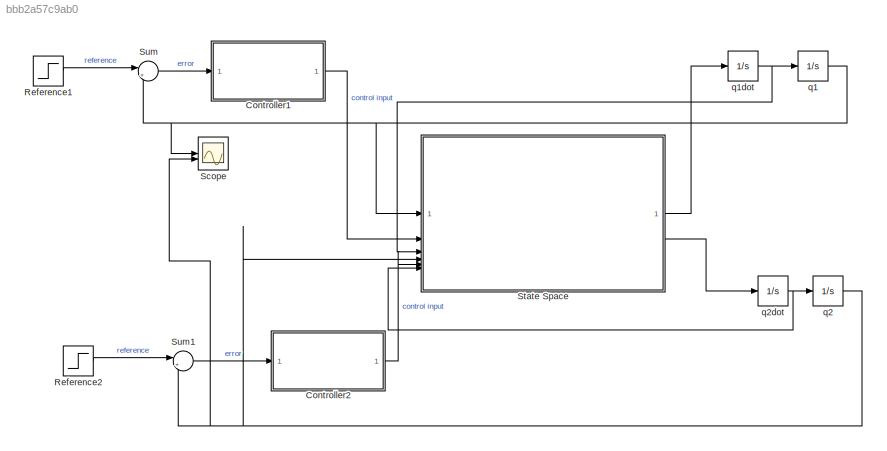
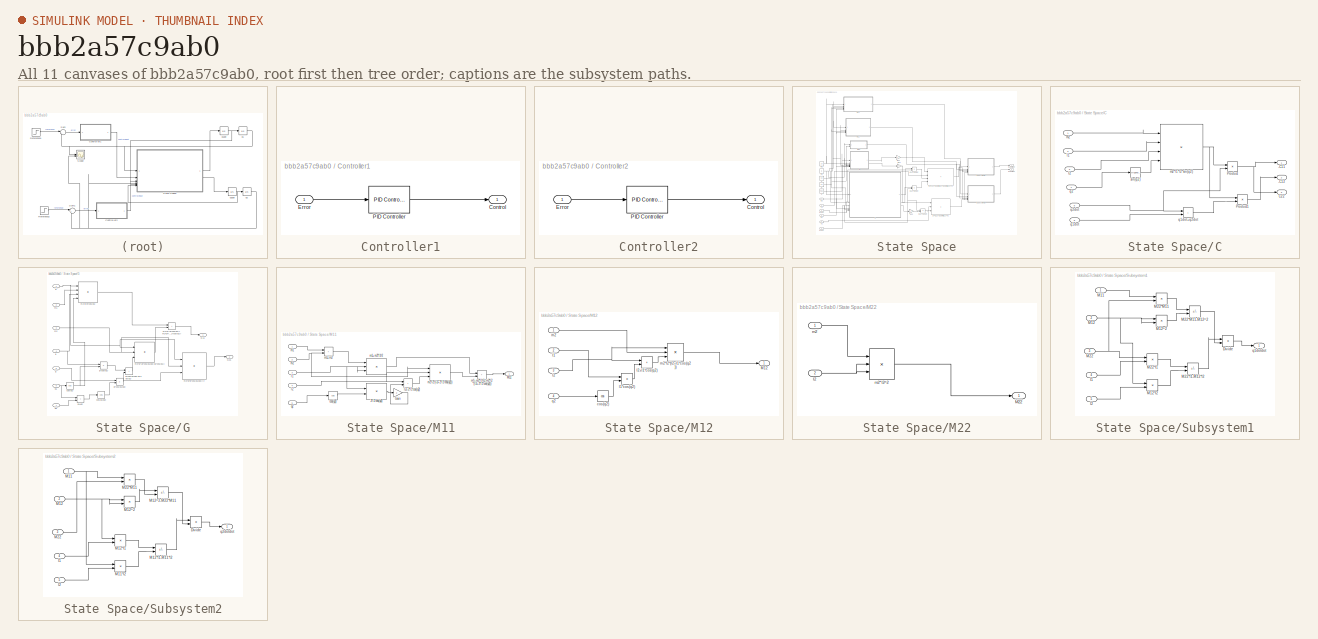
[diagram: thumbnail index - all 11 canvases of the model, root first then tree order]
MODEL slx_bbb2a57c9ab0
KIND model
CONFIG AbsTol = auto
CONFIG EnableMultiTasking = on
CONFIG FixedStep = auto
CONFIG MaxStep = 0.01
CONFIG MinStep = auto
CONFIG RelTol = 1e-10
CONFIG SampleTimeConstraint = Unconstrained
CONFIG SolverName = ode45
CONFIG StartTime = 0.0
CONFIG StopTime = 10
BLOCK [SubSystem] Controller1
BLOCK [Outport] Controller1/Control
BLOCK [Inport] Controller1/Error
BLOCK [Reference] Controller1/PID Controller  REF=slpidlib/PID Controller
  SourceBlock = slpidlib/PID Controller
  SourceType = PID 1dof
BLOCK [SubSystem] Controller2
BLOCK [Outport] Controller2/Control
BLOCK [Inport] Controller2/Error
BLOCK [Reference] Controller2/PID Controller  REF=slpidlib/PID Controller
  SourceBlock = slpidlib/PID Controller
  SourceType = PID 1dof
BLOCK [Step] Reference1
  After = 0
  SampleTime = 0
BLOCK [Step] Reference2
  After = 0
  SampleTime = 0
BLOCK [Scope] Scope
  Floating = off
  NumInputPorts = 2
  ScopeSpecificationString = Simulink.scopes.TimeScopeBlockCfg('CurrentConfiguration', extmgr.ConfigurationSet(extmgr.Configuration('Core','General UI',true,'DisplayFullSourceName',true),extmgr.Configuration('Core','Source UI',true),extmgr.Configuration('Sources','WiredSimulink',true),extmgr.Configuration('Visuals','Time Domain',true,'SerializedDisplays',{struct('MinYLimReal','-0.62843','MaxYLimReal','0.08277','YLabelReal',''...<+1543ch>
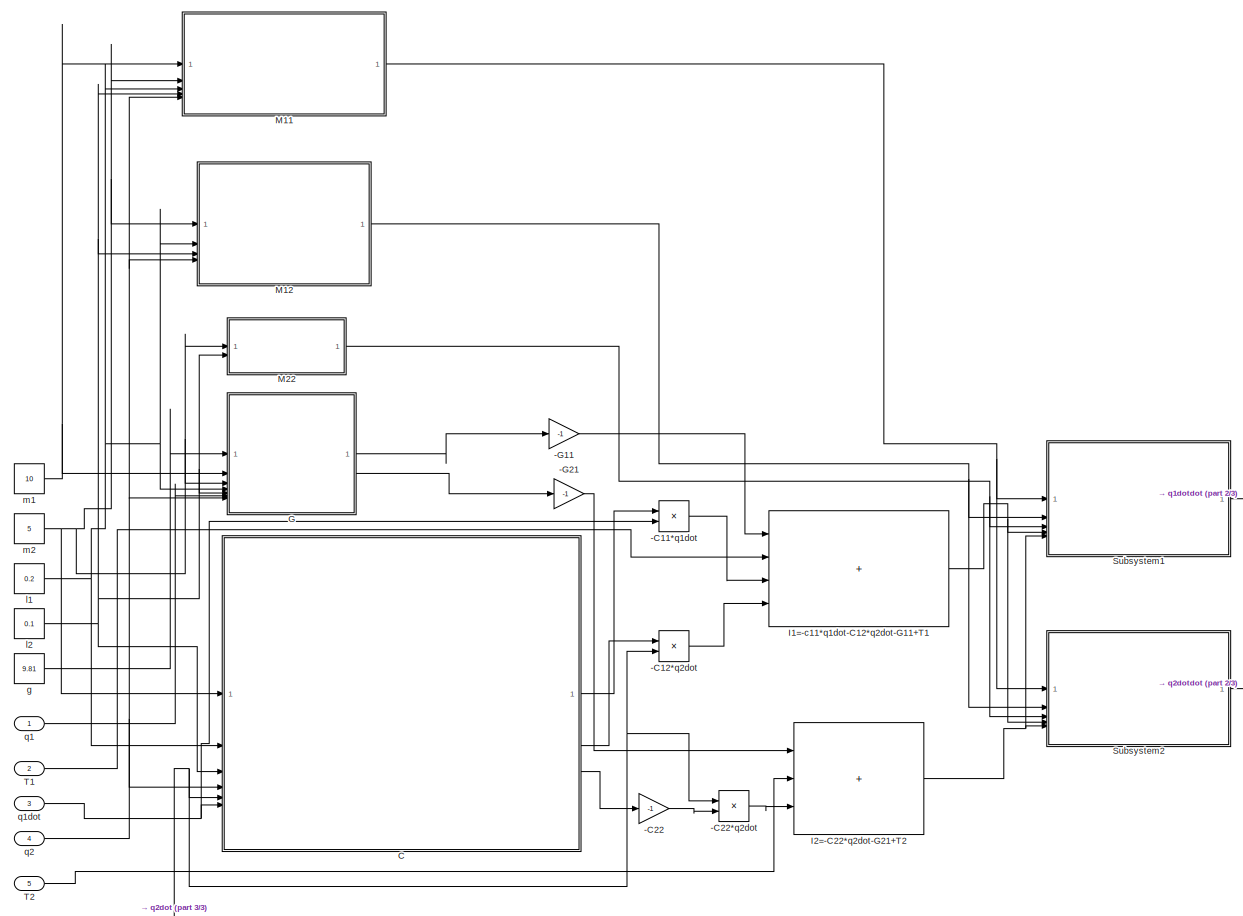
[diagram: State Space - part 1/3, most of the canvas]
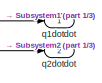
[diagram: State Space - part 2/3, middle right region]
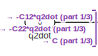
[diagram: State Space - part 3/3, bottom left region]
BLOCK [SubSystem] State Space
BLOCK [Product] State Space/-C11*q1dot
BLOCK [Product] State Space/-C12*q2dot
BLOCK [Gain] State Space/-C22
  Gain = -1
BLOCK [Product] State Space/-C22*q2dot
BLOCK [Gain] State Space/-G11
  Gain = -1
BLOCK [Gain] State Space/-G21
  Gain = -1
BLOCK [SubSystem] State Space/C
BLOCK [Outport] State Space/C/-C11
BLOCK [Outport] State Space/C/-C12
  Port = 2
BLOCK [Outport] State Space/C/C22
  Port = 3
BLOCK [Inport] State Space/C/I2
  Port = 3
BLOCK [Product] State Space/C/Product
BLOCK [Product] State Space/C/Product1
BLOCK [Inport] State Space/C/l1
  Port = 2
BLOCK [Inport] State Space/C/m2
BLOCK [Product] State Space/C/m2*l1*l2*sin(q2)
  Inputs = 4
BLOCK [Inport] State Space/C/q1dot
  Port = 6
BLOCK [Sum] State Space/C/q1dot+q2dot
  IconShape = rectangular
BLOCK [Inport] State Space/C/q2
  Port = 4
BLOCK [Inport] State Space/C/q2dot
  Port = 5
BLOCK [Trigonometry] State Space/C/sin(q2)
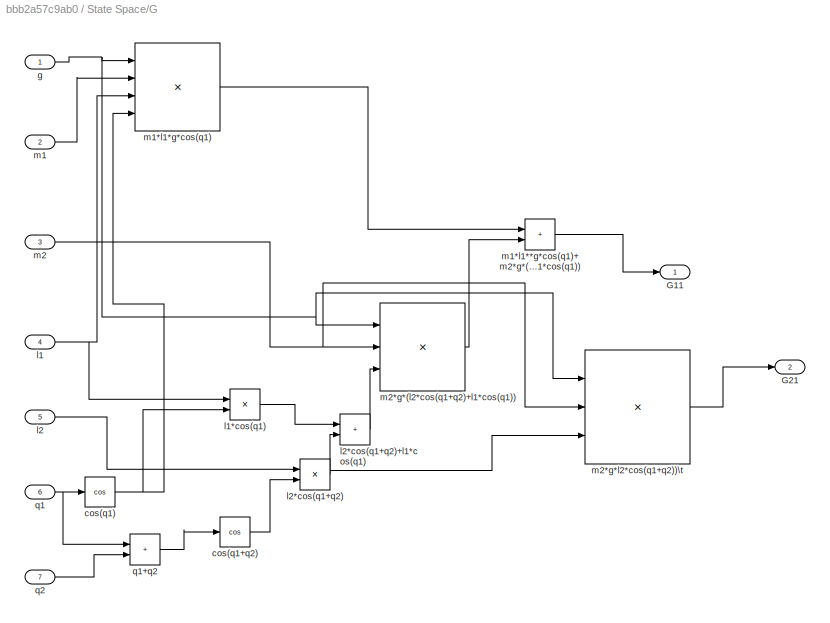
BLOCK [SubSystem] State Space/G
BLOCK [Outport] State Space/G/G11
BLOCK [Outport] State Space/G/G21
  Port = 2
BLOCK [Trigonometry] State Space/G/cos(q1)
  Operator = cos
BLOCK [Trigonometry] State Space/G/cos(q1+q2)
  Operator = cos
BLOCK [Inport] State Space/G/g
BLOCK [Inport] State Space/G/l1
  Port = 4
BLOCK [Product] State Space/G/l1*cos(q1)
BLOCK [Inport] State Space/G/l2
  Port = 5
BLOCK [Product] State Space/G/l2*cos(q1+q2)
BLOCK [Sum] State Space/G/l2*cos(q1+q2)+l1*cos(q1)
  IconShape = rectangular
BLOCK [Inport] State Space/G/m1
  Port = 2
BLOCK [Sum] State Space/G/m1*l1**g*cos(q1)+m2*g*(l2cos(q1+q2)+l1*cos(q1))
  IconShape = rectangular
BLOCK [Product] State Space/G/m1*l1*g*cos(q1)
  Inputs = 4
BLOCK [Inport] State Space/G/m2
  Port = 3
BLOCK [Product] State Space/G/m2*g*(l2*cos(q1+q2)+l1*cos(q1))
  Inputs = 3
BLOCK [Product] State Space/G/m2*g*l2*cos(q1+q2))\t
  Inputs = 3
BLOCK [Inport] State Space/G/q1
  Port = 6
BLOCK [Sum] State Space/G/q1+q2
  IconShape = rectangular
BLOCK [Inport] State Space/G/q2
  Port = 7
BLOCK [Sum] State Space/I1=-c11*q1dot-C12*q2dot-G11+T1
  IconShape = rectangular
  Inputs = ++++
BLOCK [Sum] State Space/I2=-C22*q2dot-G21+T2
  IconShape = rectangular
  Inputs = +++
BLOCK [SubSystem] State Space/M11
BLOCK [Product] State Space/M11/2*l1*cos(q2)
BLOCK [Gain] State Space/M11/Gain
  Gain = 2
BLOCK [Outport] State Space/M11/M11
BLOCK [Trigonometry] State Space/M11/cos(q2)
  Operator = cos
BLOCK [Inport] State Space/M11/l1
  Port = 3
BLOCK [Inport] State Space/M11/l2
  Port = 4
BLOCK [Sum] State Space/M11/l2+2*l1*cos(q2)
  IconShape = rectangular
BLOCK [Inport] State Space/M11/m1
BLOCK [Sum] State Space/M11/m1+m2
  IconShape = rectangular
BLOCK [Product] State Space/M11/m1+m2*l1^2
  Inputs = 3
BLOCK [Sum] State Space/M11/m1+m2*l1^2+m2*l2*(l2+2*l1*cos(q2))
  IconShape = rectangular
BLOCK [Inport] State Space/M11/m2
  Port = 2
BLOCK [Product] State Space/M11/m2*l2*(l2+2*l1*cos(q2))
  Inputs = 3
BLOCK [Inport] State Space/M11/q2
  Port = 5
BLOCK [SubSystem] State Space/M12
BLOCK [Outport] State Space/M12/M12
BLOCK [Trigonometry] State Space/M12/cos(q2)
  Operator = cos
BLOCK [Inport] State Space/M12/l1
  Port = 2
BLOCK [Product] State Space/M12/l1*cos(q2)
BLOCK [Inport] State Space/M12/l2
  Port = 3
BLOCK [Sum] State Space/M12/l2+l1*cos(q2)
  IconShape = rectangular
BLOCK [Inport] State Space/M12/m2
BLOCK [Product] State Space/M12/m2*l2*(l2+l1*cos(q2))
  Inputs = 3
BLOCK [Inport] State Space/M12/q2
  Port = 4
BLOCK [SubSystem] State Space/M22
BLOCK [Outport] State Space/M22/M22
BLOCK [Inport] State Space/M22/l2
  Port = 2
BLOCK [Inport] State Space/M22/m2
BLOCK [Product] State Space/M22/m2*l2^2
  Inputs = 3
BLOCK [SubSystem] State Space/Subsystem1
BLOCK [Product] State Space/Subsystem1/Divide
  Inputs = */
BLOCK [Inport] State Space/Subsystem1/I1
  Port = 4
BLOCK [Inport] State Space/Subsystem1/I2
  Port = 5
BLOCK [Inport] State Space/Subsystem1/M11
BLOCK [Inport] State Space/Subsystem1/M12
  Port = 2
BLOCK [Product] State Space/Subsystem1/M12*I2
BLOCK [Product] State Space/Subsystem1/M12^2
BLOCK [Inport] State Space/Subsystem1/M22
  Port = 3
BLOCK [Product] State Space/Subsystem1/M22*I1
BLOCK [Sum] State Space/Subsystem1/M22*I1-M12*I2
  IconShape = rectangular
  Inputs = +-
BLOCK [Product] State Space/Subsystem1/M22*M11
BLOCK [Sum] State Space/Subsystem1/M22*M11-M12^2
  IconShape = rectangular
  Inputs = +-
BLOCK [Outport] State Space/Subsystem1/q1dotdot 
BLOCK [SubSystem] State Space/Subsystem2
BLOCK [Product] State Space/Subsystem2/Divide
  Inputs = */
BLOCK [Inport] State Space/Subsystem2/I1
  Port = 4
BLOCK [Inport] State Space/Subsystem2/I2
  Port = 5
BLOCK [Inport] State Space/Subsystem2/M11
BLOCK [Product] State Space/Subsystem2/M11*I2
BLOCK [Inport] State Space/Subsystem2/M12
  Port = 2
BLOCK [Product] State Space/Subsystem2/M12*I1
BLOCK [Sum] State Space/Subsystem2/M12*I1-M11*I2
  IconShape = rectangular
  Inputs = +-
BLOCK [Product] State Space/Subsystem2/M12^2
BLOCK [Sum] State Space/Subsystem2/M12^2-M22*M11
  IconShape = rectangular
  Inputs = +-
BLOCK [Inport] State Space/Subsystem2/M22
  Port = 3
BLOCK [Product] State Space/Subsystem2/M22*M11
BLOCK [Outport] State Space/Subsystem2/q2dotdot 
BLOCK [Inport] State Space/T1
  Port = 2
BLOCK [Inport] State Space/T2
  Port = 5
BLOCK [Constant] State Space/g
  Value = 9.81
BLOCK [Constant] State Space/l1
  Value = 0.2
BLOCK [Constant] State Space/l2
  Value = 0.1
BLOCK [Constant] State Space/m1
  Value = 10
BLOCK [Constant] State Space/m2
  Value = 5
BLOCK [Inport] State Space/q1
BLOCK [Inport] State Space/q1dot
  Port = 3
BLOCK [Outport] State Space/q1dotdot
BLOCK [Inport] State Space/q2
  Port = 4
BLOCK [Inport] State Space/q2dot
  Port = 6
BLOCK [Outport] State Space/q2dotdot
  Port = 2
BLOCK [Sum] Sum
  Inputs = |+-
BLOCK [Sum] Sum1
  Inputs = |+-
BLOCK [Integrator] q1
  InitialCondition = 0.1
BLOCK [Integrator] q1dot
BLOCK [Integrator] q2
  InitialCondition = 0.1
BLOCK [Integrator] q2dot
LINE Controller1/Error:1 -> Controller1/PID Controller:1
LINE Controller1/PID Controller:1 -> Controller1/Control:1
LINE Controller1:1 -> State Space:2
LINE Controller2/Error:1 -> Controller2/PID Controller:1
LINE Controller2/PID Controller:1 -> Controller2/Control:1
LINE Controller2:1 -> State Space:5
LINE Reference1:1 -> Sum:1
LINE Reference2:1 -> Sum1:1
LINE State Space/-C11*q1dot:1 -> State Space/I1=-c11*q1dot-C12*q2dot-G11+T1:3
LINE State Space/-C12*q2dot:1 -> State Space/I1=-c11*q1dot-C12*q2dot-G11+T1:4
LINE State Space/-C22*q2dot:1 -> State Space/I2=-C22*q2dot-G21+T2:3
LINE State Space/-C22:1 -> State Space/-C22*q2dot:2
LINE State Space/-G11:1 -> State Space/I1=-c11*q1dot-C12*q2dot-G11+T1:1
LINE State Space/-G21:1 -> State Space/I2=-C22*q2dot-G21+T2:1
LINE State Space/C/I2:1 -> State Space/C/m2*l1*l2*sin(q2):3
LINE State Space/C/Product1:1 -> State Space/C/-C12:1
NET State Space/C/Product:1 -> State Space/C/-C11:1, State Space/C/C22:1
LINE State Space/C/l1:1 -> State Space/C/m2*l1*l2*sin(q2):2
NET State Space/C/m2*l1*l2*sin(q2):1 -> State Space/C/Product1:1, State Space/C/Product:1
LINE State Space/C/m2:1 -> State Space/C/m2*l1*l2*sin(q2):1
LINE State Space/C/q1dot+q2dot:1 -> State Space/C/Product1:2
LINE State Space/C/q1dot:1 -> State Space/C/q1dot+q2dot:2
LINE State Space/C/q2:1 -> State Space/C/sin(q2):1
NET State Space/C/q2dot:1 -> State Space/C/Product:2, State Space/C/q1dot+q2dot:1
LINE State Space/C/sin(q2):1 -> State Space/C/m2*l1*l2*sin(q2):4
LINE State Space/C:1 -> State Space/-C11*q1dot:1
LINE State Space/C:2 -> State Space/-C12*q2dot:1
LINE State Space/C:3 -> State Space/-C22:1
NET State Space/G/cos(q1):1 -> State Space/G/l1*cos(q1):2, State Space/G/m1*l1*g*cos(q1):4
LINE State Space/G/cos(q1+q2):1 -> State Space/G/l2*cos(q1+q2):2
NET State Space/G/g:1 -> State Space/G/m1*l1*g*cos(q1):1, State Space/G/m2*g*(l2*cos(q1+q2)+l1*cos(q1)):1, State Space/G/m2*g*l2*cos(q1+q2))\t:1
LINE State Space/G/l1*cos(q1):1 -> State Space/G/l2*cos(q1+q2)+l1*cos(q1):1
NET State Space/G/l1:1 -> State Space/G/l1*cos(q1):1, State Space/G/m1*l1*g*cos(q1):3
LINE State Space/G/l2*cos(q1+q2)+l1*cos(q1):1 -> State Space/G/m2*g*(l2*cos(q1+q2)+l1*cos(q1)):3
NET State Space/G/l2*cos(q1+q2):1 -> State Space/G/l2*cos(q1+q2)+l1*cos(q1):2, State Space/G/m2*g*l2*cos(q1+q2))\t:3
LINE State Space/G/l2:1 -> State Space/G/l2*cos(q1+q2):1
LINE State Space/G/m1*l1**g*cos(q1)+m2*g*(l2cos(q1+q2)+l1*cos(q1)):1 -> State Space/G/G11:1
LINE State Space/G/m1*l1*g*cos(q1):1 -> State Space/G/m1*l1**g*cos(q1)+m2*g*(l2cos(q1+q2)+l1*cos(q1)):1
LINE State Space/G/m1:1 -> State Space/G/m1*l1*g*cos(q1):2
LINE State Space/G/m2*g*(l2*cos(q1+q2)+l1*cos(q1)):1 -> State Space/G/m1*l1**g*cos(q1)+m2*g*(l2cos(q1+q2)+l1*cos(q1)):2
LINE State Space/G/m2*g*l2*cos(q1+q2))\t:1 -> State Space/G/G21:1
NET State Space/G/m2:1 -> State Space/G/m2*g*(l2*cos(q1+q2)+l1*cos(q1)):2, State Space/G/m2*g*l2*cos(q1+q2))\t:2
LINE State Space/G/q1+q2:1 -> State Space/G/cos(q1+q2):1
NET State Space/G/q1:1 -> State Space/G/cos(q1):1, State Space/G/q1+q2:1
LINE State Space/G/q2:1 -> State Space/G/q1+q2:2
LINE State Space/G:1 -> State Space/-G11:1
LINE State Space/G:2 -> State Space/-G21:1
NET State Space/I1=-c11*q1dot-C12*q2dot-G11+T1:1 -> State Space/Subsystem1:4, State Space/Subsystem2:4
NET State Space/I2=-C22*q2dot-G21+T2:1 -> State Space/Subsystem1:5, State Space/Subsystem2:5
LINE State Space/M11/2*l1*cos(q2):1 -> State Space/M11/Gain:1
LINE State Space/M11/Gain:1 -> State Space/M11/l2+2*l1*cos(q2):2
LINE State Space/M11/cos(q2):1 -> State Space/M11/2*l1*cos(q2):2
NET State Space/M11/l1:1 -> State Space/M11/2*l1*cos(q2):1, State Space/M11/m1+m2*l1^2:2, State Space/M11/m1+m2*l1^2:3
LINE State Space/M11/l2+2*l1*cos(q2):1 -> State Space/M11/m2*l2*(l2+2*l1*cos(q2)):3
NET State Space/M11/l2:1 -> State Space/M11/l2+2*l1*cos(q2):1, State Space/M11/m2*l2*(l2+2*l1*cos(q2)):2
LINE State Space/M11/m1+m2*l1^2+m2*l2*(l2+2*l1*cos(q2)):1 -> State Space/M11/M11:1
LINE State Space/M11/m1+m2*l1^2:1 -> State Space/M11/m1+m2*l1^2+m2*l2*(l2+2*l1*cos(q2)):1
LINE State Space/M11/m1+m2:1 -> State Space/M11/m1+m2*l1^2:1
LINE State Space/M11/m1:1 -> State Space/M11/m1+m2:1
LINE State Space/M11/m2*l2*(l2+2*l1*cos(q2)):1 -> State Space/M11/m1+m2*l1^2+m2*l2*(l2+2*l1*cos(q2)):2
NET State Space/M11/m2:1 -> State Space/M11/m1+m2:2, State Space/M11/m2*l2*(l2+2*l1*cos(q2)):1
LINE State Space/M11/q2:1 -> State Space/M11/cos(q2):1
NET State Space/M11:1 -> State Space/Subsystem1:1, State Space/Subsystem2:1
LINE State Space/M12/cos(q2):1 -> State Space/M12/l1*cos(q2):2
LINE State Space/M12/l1*cos(q2):1 -> State Space/M12/l2+l1*cos(q2):2
LINE State Space/M12/l1:1 -> State Space/M12/l1*cos(q2):1
LINE State Space/M12/l2+l1*cos(q2):1 -> State Space/M12/m2*l2*(l2+l1*cos(q2)):3
NET State Space/M12/l2:1 -> State Space/M12/l2+l1*cos(q2):1, State Space/M12/m2*l2*(l2+l1*cos(q2)):1
LINE State Space/M12/m2*l2*(l2+l1*cos(q2)):1 -> State Space/M12/M12:1
LINE State Space/M12/m2:1 -> State Space/M12/m2*l2*(l2+l1*cos(q2)):2
LINE State Space/M12/q2:1 -> State Space/M12/cos(q2):1
NET State Space/M12:1 -> State Space/Subsystem1:2, State Space/Subsystem2:2
NET State Space/M22/l2:1 -> State Space/M22/m2*l2^2:2, State Space/M22/m2*l2^2:3
LINE State Space/M22/m2*l2^2:1 -> State Space/M22/M22:1
LINE State Space/M22/m2:1 -> State Space/M22/m2*l2^2:1
NET State Space/M22:1 -> State Space/Subsystem1:3, State Space/Subsystem2:3
LINE State Space/Subsystem1/Divide:1 -> State Space/Subsystem1/q1dotdot :1
LINE State Space/Subsystem1/I1:1 -> State Space/Subsystem1/M22*I1:2
LINE State Space/Subsystem1/I2:1 -> State Space/Subsystem1/M12*I2:2
LINE State Space/Subsystem1/M11:1 -> State Space/Subsystem1/M22*M11:1
LINE State Space/Subsystem1/M12*I2:1 -> State Space/Subsystem1/M22*I1-M12*I2:2
NET State Space/Subsystem1/M12:1 -> State Space/Subsystem1/M12*I2:1, State Space/Subsystem1/M12^2:1, State Space/Subsystem1/M12^2:2
LINE State Space/Subsystem1/M12^2:1 -> State Space/Subsystem1/M22*M11-M12^2:2
LINE State Space/Subsystem1/M22*I1-M12*I2:1 -> State Space/Subsystem1/Divide:1
LINE State Space/Subsystem1/M22*I1:1 -> State Space/Subsystem1/M22*I1-M12*I2:1
LINE State Space/Subsystem1/M22*M11-M12^2:1 -> State Space/Subsystem1/Divide:2
LINE State Space/Subsystem1/M22*M11:1 -> State Space/Subsystem1/M22*M11-M12^2:1
NET State Space/Subsystem1/M22:1 -> State Space/Subsystem1/M22*I1:1, State Space/Subsystem1/M22*M11:2
LINE State Space/Subsystem1:1 -> State Space/q1dotdot:1
LINE State Space/Subsystem2/Divide:1 -> State Space/Subsystem2/q2dotdot :1
LINE State Space/Subsystem2/I1:1 -> State Space/Subsystem2/M12*I1:2
LINE State Space/Subsystem2/I2:1 -> State Space/Subsystem2/M11*I2:2
LINE State Space/Subsystem2/M11*I2:1 -> State Space/Subsystem2/M12*I1-M11*I2:2
NET State Space/Subsystem2/M11:1 -> State Space/Subsystem2/M11*I2:1, State Space/Subsystem2/M22*M11:1
LINE State Space/Subsystem2/M12*I1-M11*I2:1 -> State Space/Subsystem2/Divide:1
LINE State Space/Subsystem2/M12*I1:1 -> State Space/Subsystem2/M12*I1-M11*I2:1
NET State Space/Subsystem2/M12:1 -> State Space/Subsystem2/M12*I1:1, State Space/Subsystem2/M12^2:1, State Space/Subsystem2/M12^2:2
LINE State Space/Subsystem2/M12^2-M22*M11:1 -> State Space/Subsystem2/Divide:2
LINE State Space/Subsystem2/M12^2:1 -> State Space/Subsystem2/M12^2-M22*M11:1
LINE State Space/Subsystem2/M22*M11:1 -> State Space/Subsystem2/M12^2-M22*M11:2
LINE State Space/Subsystem2/M22:1 -> State Space/Subsystem2/M22*M11:2
LINE State Space/Subsystem2:1 -> State Space/q2dotdot:1
LINE State Space/T1:1 -> State Space/I1=-c11*q1dot-C12*q2dot-G11+T1:2
LINE State Space/T2:1 -> State Space/I2=-C22*q2dot-G21+T2:2
LINE State Space/g:1 -> State Space/G:1
NET State Space/l1:1 -> State Space/C:2, State Space/G:4, State Space/M11:3, State Space/M12:2
NET State Space/l2:1 -> State Space/C:3, State Space/G:5, State Space/M11:4, State Space/M12:3, State Space/M22:2
NET State Space/m1:1 -> State Space/G:2, State Space/M11:1
NET State Space/m2:1 -> State Space/C:1, State Space/G:3, State Space/M11:2, State Space/M12:1, State Space/M22:1
LINE State Space/q1:1 -> State Space/G:6
NET State Space/q1dot:1 -> State Space/-C11*q1dot:2, State Space/C:6
NET State Space/q2:1 -> State Space/C:4, State Space/G:7, State Space/M11:5, State Space/M12:4
NET State Space/q2dot:1 -> State Space/-C12*q2dot:2, State Space/-C22*q2dot:1, State Space/C:5
LINE State Space:1 -> q1dot:1
LINE State Space:2 -> q2dot:1
LINE Sum1:1 -> Controller2:1
LINE Sum:1 -> Controller1:1
NET q1:1 -> Scope:1, State Space:1, Sum:2
NET q1dot:1 -> State Space:3, q1:1
NET q2:1 -> Scope:2, State Space:4, Sum1:2
NET q2dot:1 -> State Space:6, q2:1
note: NET lines group one-source signal fan-out (src -> all destinations, sorted); 1:1 wires keep LINE
